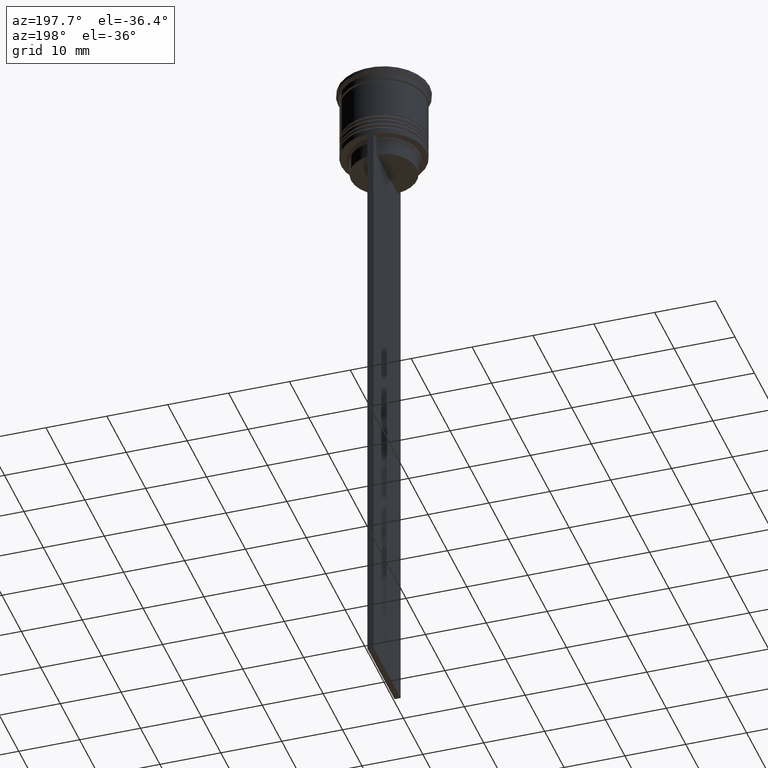
[diagram: clean part render]
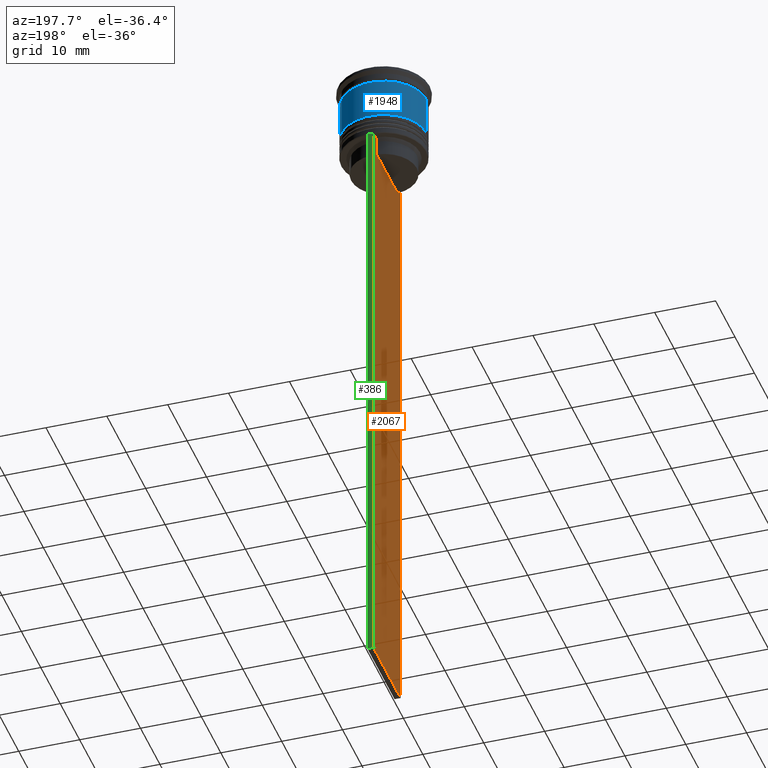
[diagram: same view with three faces highlighted in distinct colors, each labeled with its STEP entity id]
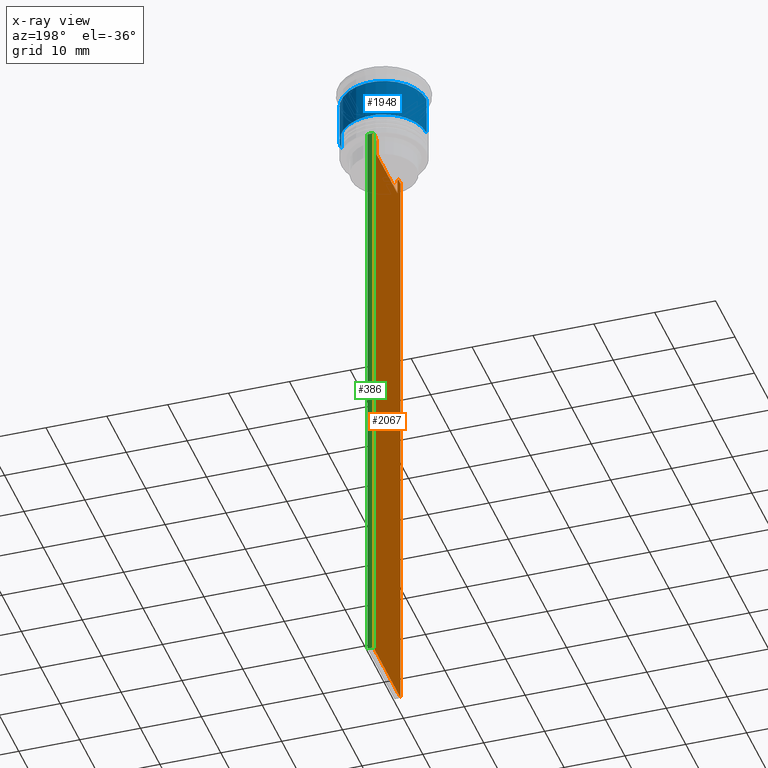
[diagram: x-ray of the same camera — body ghosted, the three highlighted faces saturated]
A machine part, auxiliary view with three faces highlighted in distinct colors.
The next image is the same camera in x-ray (body ghosted, the three faces saturated) — at least one of them is partly hidden behind the body in this view.
Their STEP definitions:

[orange] entity #2067 — the highlighted planar face has unit normal (-1, 0, 0).
#20 = DIRECTION ( 'NONE',  ( -1.000000000000000000, 0.000000000000000000, 0.000000000000000000 ) ) ;
#40 = EDGE_CURVE ( 'NONE', #947, #2364, #1402, .T. ) ;
#94 = CARTESIAN_POINT ( 'NONE',  ( -0.5000000000000000000, 6.881860213634102053, -12.50000000000000000 ) ) ;
#150 = LINE ( 'NONE', #533, #952 ) ;
#218 = CARTESIAN_POINT ( 'NONE',  ( -0.5000000000000000000, 5.376802023508029826, -15.50000000000000000 ) ) ;
#275 = DIRECTION ( 'NONE',  ( 0.000000000000000000, -1.000000000000000000, 0.000000000000000000 ) ) ;
#276 = EDGE_CURVE ( 'NONE', #2267, #1573, #528, .T. ) ;
#302 = CARTESIAN_POINT ( 'NONE',  ( -0.5000000000000000000, 5.400000000000003908, -15.50000000000000000 ) ) ;
#306 = VECTOR ( 'NONE', #1374, 1000.000000000000000 ) ;
#365 = ORIENTED_EDGE ( 'NONE', *, *, #1595, .F. ) ;
#409 = ORIENTED_EDGE ( 'NONE', *, *, #2205, .F. ) ;
#410 = ORIENTED_EDGE ( 'NONE', *, *, #2318, .F. ) ;
#418 = EDGE_CURVE ( 'NONE', #2364, #2436, #777, .T. ) ;
#440 = VERTEX_POINT ( 'NONE', #218 ) ;
#489 = ORIENTED_EDGE ( 'NONE', *, *, #2242, .F. ) ;
#500 = CARTESIAN_POINT ( 'NONE',  ( -0.5000000000000000000, -5.376802023508029826, -13.00000000000000178 ) ) ;
#521 = CARTESIAN_POINT ( 'NONE',  ( -0.5000000000000000000, -5.878775382679629402, -12.50000000000000000 ) ) ;
#522 = CARTESIAN_POINT ( 'NONE',  ( -0.5000000000000000000, -6.881860213634102053, -12.50000000000000000 ) ) ;
#528 = LINE ( 'NONE', #2070, #1961 ) ;
#533 = CARTESIAN_POINT ( 'NONE',  ( -0.5000000000000000000, -6.999999999999997335, -12.50000000000000000 ) ) ;
#581 = CARTESIAN_POINT ( 'NONE',  ( -0.5000000000000000000, -6.999999999999997335, 1.535668847618198329 ) ) ;
#605 = ORIENTED_EDGE ( 'NONE', *, *, #276, .F. ) ;
#656 = CARTESIAN_POINT ( 'NONE',  ( -0.5000000000000000000, -6.999999999999997335, -112.5000000000000000 ) ) ;
#699 = CARTESIAN_POINT ( 'NONE',  ( -0.5000000000000000000, -5.376802023508029826, -15.50000000000000000 ) ) ;
#777 = LINE ( 'NONE', #1565, #306 ) ;
#794 = DIRECTION ( 'NONE',  ( 0.000000000000000000, 0.000000000000000000, -1.000000000000000000 ) ) ;
#802 = CARTESIAN_POINT ( 'NONE',  ( -0.5000000000000000000, 7.000000000000002665, -12.50000000000000000 ) ) ;
#846 = VERTEX_POINT ( 'NONE', #802 ) ;
#875 = LINE ( 'NONE', #1646, #1175 ) ;
#881 = EDGE_CURVE ( 'NONE', #1310, #1246, #1831, .T. ) ;
#901 = VECTOR ( 'NONE', #982, 1000.000000000000000 ) ;
#916 = CARTESIAN_POINT ( 'NONE',  ( -0.5000000000000000000, -5.878775382679629402, -12.50000000000000000 ) ) ;
#917 = DIRECTION ( 'NONE',  ( 0.000000000000000000, -1.000000000000000000, 0.000000000000000000 ) ) ;
#939 = LINE ( 'NONE', #1358, #1170 ) ;
#947 = VERTEX_POINT ( 'NONE', #1444 ) ;
#952 = VECTOR ( 'NONE', #917, 1000.000000000000000 ) ;
#957 = CARTESIAN_POINT ( 'NONE',  ( -0.5000000000000000000, 5.711478846560141598, -12.66669470477064685 ) ) ;
#969 = CARTESIAN_POINT ( 'NONE',  ( -0.5000000000000000000, 5.878775382679629402, -12.50000000000000000 ) ) ;
#982 = DIRECTION ( 'NONE',  ( 0.000000000000000000, 0.000000000000000000, -1.000000000000000000 ) ) ;
#991 = ORIENTED_EDGE ( 'NONE', *, *, #1611, .T. ) ;
#992 = PLANE ( 'NONE',  #2325 ) ;
#998 = CARTESIAN_POINT ( 'NONE',  ( -0.5000000000000000000, -6.999999999999997335, 1.535668847618198329 ) ) ;
#1007 = ORIENTED_EDGE ( 'NONE', *, *, #1553, .F. ) ;
#1053 = VERTEX_POINT ( 'NONE', #2274 ) ;
#1065 = ORIENTED_EDGE ( 'NONE', *, *, #1360, .F. ) ;
#1104 = LINE ( 'NONE', #302, #1420 ) ;
#1170 = VECTOR ( 'NONE', #794, 1000.000000000000000 ) ;
#1171 = DIRECTION ( 'NONE',  ( 0.000000000000000000, 0.000000000000000000, 1.000000000000000000 ) ) ;
#1175 = VECTOR ( 'NONE', #1824, 1000.000000000000000 ) ;
#1177 = LINE ( 'NONE', #1353, #1648 ) ;
#1197 = CARTESIAN_POINT ( 'NONE',  ( -0.5000000000000000000, 5.878775382679629402, -12.50000000000000000 ) ) ;
#1213 = DIRECTION ( 'NONE',  ( 0.000000000000000000, 0.000000000000000000, -1.000000000000000000 ) ) ;
#1223 = LINE ( 'NONE', #2012, #1612 ) ;
#1228 = EDGE_LOOP ( 'NONE', ( #365, #1836, #1065, #991, #1637, #1781, #1007, #605, #409, #410, #489, #2249 ) ) ;
#1234 = EDGE_CURVE ( 'NONE', #1053, #440, #1177, .T. ) ;
#1246 = VERTEX_POINT ( 'NONE', #1197 ) ;
#1310 = VERTEX_POINT ( 'NONE', #94 ) ;
#1353 = CARTESIAN_POINT ( 'NONE',  ( -0.5000000000000000000, 5.376802023508029826, 0.000000000000000000 ) ) ;
#1358 = CARTESIAN_POINT ( 'NONE',  ( -0.5000000000000000000, 7.000000000000002665, 1.535668847618198329 ) ) ;
#1360 = EDGE_CURVE ( 'NONE', #846, #1310, #1223, .T. ) ;
#1372 = FACE_OUTER_BOUND ( 'NONE', #1228, .T. ) ;
#1374 = DIRECTION ( 'NONE',  ( 0.000000000000000000, 1.000000000000000000, 0.000000000000000000 ) ) ;
#1402 = LINE ( 'NONE', #998, #901 ) ;
#1420 = VECTOR ( 'NONE', #1509, 1000.000000000000000 ) ;
#1444 = CARTESIAN_POINT ( 'NONE',  ( -0.5000000000000000000, -6.999999999999997335, -12.50000000000000000 ) ) ;
#1493 = CARTESIAN_POINT ( 'NONE',  ( -0.5000000000000000000, -5.376802023508029826, -13.00000000000000178 ) ) ;
#1509 = DIRECTION ( 'NONE',  ( 0.000000000000000000, -1.000000000000000000, 0.000000000000000000 ) ) ;
#1553 = EDGE_CURVE ( 'NONE', #1573, #947, #150, .T. ) ;
#1565 = CARTESIAN_POINT ( 'NONE',  ( -0.5000000000000000000, -6.999999999999997335, -112.5000000000000000 ) ) ;
#1566 = CARTESIAN_POINT ( 'NONE',  ( -0.5000000000000000000, 5.544156989057553275, -12.83336397825725861 ) ) ;
#1573 = VERTEX_POINT ( 'NONE', #522 ) ;
#1595 = EDGE_CURVE ( 'NONE', #1246, #1053, #1609, .T. ) ;
#1609 = B_SPLINE_CURVE_WITH_KNOTS ( 'NONE', 3,
 ( #969, #957, #1566, #1744 ),
 .UNSPECIFIED., .F., .F.,
 ( 4, 4 ),
 ( 0.01003009312103698807, 0.01073859663834952557 ),
 .UNSPECIFIED. ) ;
#1611 = EDGE_CURVE ( 'NONE', #846, #2436, #939, .T. ) ;
#1612 = VECTOR ( 'NONE', #275, 1000.000000000000000 ) ;
#1637 = ORIENTED_EDGE ( 'NONE', *, *, #418, .F. ) ;
#1646 = CARTESIAN_POINT ( 'NONE',  ( -0.5000000000000000000, -5.376802023508029826, 0.000000000000000000 ) ) ;
#1648 = VECTOR ( 'NONE', #1213, 1000.000000000000000 ) ;
#1686 = VECTOR ( 'NONE', #2208, 1000.000000000000000 ) ;
#1744 = CARTESIAN_POINT ( 'NONE',  ( -0.5000000000000000000, 5.376802023508029826, -13.00000000000000178 ) ) ;
#1781 = ORIENTED_EDGE ( 'NONE', *, *, #40, .F. ) ;
#1824 = DIRECTION ( 'NONE',  ( -0.000000000000000000, -0.000000000000000000, 1.000000000000000000 ) ) ;
#1831 = LINE ( 'NONE', #1990, #1686 ) ;
#1836 = ORIENTED_EDGE ( 'NONE', *, *, #881, .F. ) ;
#1871 = B_SPLINE_CURVE_WITH_KNOTS ( 'NONE', 3,
 ( #1493, #2064, #2246, #521 ),
 .UNSPECIFIED., .F., .F.,
 ( 4, 4 ),
 ( 0.02539176325380714666, 0.02610162431828674801 ),
 .UNSPECIFIED. ) ;
#1872 = VERTEX_POINT ( 'NONE', #699 ) ;
#1961 = VECTOR ( 'NONE', #2433, 1000.000000000000000 ) ;
#1990 = CARTESIAN_POINT ( 'NONE',  ( -0.5000000000000000000, -6.999999999999997335, -12.50000000000000000 ) ) ;
#2012 = CARTESIAN_POINT ( 'NONE',  ( -0.5000000000000000000, -6.999999999999997335, -12.50000000000000000 ) ) ;
#2061 = CARTESIAN_POINT ( 'NONE',  ( -0.5000000000000000000, 7.000000000000002665, -112.5000000000000000 ) ) ;
#2064 = CARTESIAN_POINT ( 'NONE',  ( -0.5000000000000000000, -5.544156999454441959, -12.83336396790503642 ) ) ;
#2067 = ADVANCED_FACE ( 'NONE', ( #1372 ), #992, .T. ) ;
#2070 = CARTESIAN_POINT ( 'NONE',  ( -0.5000000000000000000, -6.999999999999997335, -12.50000000000000000 ) ) ;
#2205 = EDGE_CURVE ( 'NONE', #2476, #2267, #1871, .T. ) ;
#2208 = DIRECTION ( 'NONE',  ( 0.000000000000000000, -1.000000000000000000, 0.000000000000000000 ) ) ;
#2242 = EDGE_CURVE ( 'NONE', #440, #1872, #1104, .T. ) ;
#2246 = CARTESIAN_POINT ( 'NONE',  ( -0.5000000000000000000, -5.711478856069293286, -12.66669469529570335 ) ) ;
#2249 = ORIENTED_EDGE ( 'NONE', *, *, #1234, .F. ) ;
#2267 = VERTEX_POINT ( 'NONE', #916 ) ;
#2274 = CARTESIAN_POINT ( 'NONE',  ( -0.5000000000000000000, 5.376802023508029826, -13.00000000000000178 ) ) ;
#2318 = EDGE_CURVE ( 'NONE', #1872, #2476, #875, .T. ) ;
#2325 = AXIS2_PLACEMENT_3D ( 'NONE', #581, #20, #1171 ) ;
#2364 = VERTEX_POINT ( 'NONE', #656 ) ;
#2433 = DIRECTION ( 'NONE',  ( 0.000000000000000000, -1.000000000000000000, 0.000000000000000000 ) ) ;
#2436 = VERTEX_POINT ( 'NONE', #2061 ) ;
#2476 = VERTEX_POINT ( 'NONE', #500 ) ;

[blue] entity #1948 — the highlighted cylindrical surface (partial cylindrical patch) has radius 7 mm, axis along (-0, -0, 1).
#2 = VERTEX_POINT ( 'NONE', #2112 ) ;
#80 = EDGE_CURVE ( 'NONE', #1320, #566, #589, .T. ) ;
#117 = ORIENTED_EDGE ( 'NONE', *, *, #80, .T. ) ;
#146 = DIRECTION ( 'NONE',  ( -0.000000000000000000, -0.000000000000000000, 1.000000000000000000 ) ) ;
#278 = DIRECTION ( 'NONE',  ( 1.000000000000000000, 0.000000000000000000, 0.000000000000000000 ) ) ;
#317 = CARTESIAN_POINT ( 'NONE',  ( 0.000000000000000000, 0.000000000000000000, 0.000000000000000000 ) ) ;
#481 = DIRECTION ( 'NONE',  ( -0.000000000000000000, -0.000000000000000000, 1.000000000000000000 ) ) ;
#560 = CARTESIAN_POINT ( 'NONE',  ( 0.000000000000000000, 0.000000000000000000, -9.000000000000001776 ) ) ;
#566 = VERTEX_POINT ( 'NONE', #1995 ) ;
#589 = CIRCLE ( 'NONE', #1325, 7.000000000000000888 ) ;
#687 = CARTESIAN_POINT ( 'NONE',  ( 0.000000000000000000, 0.000000000000000000, -2.500000000000000444 ) ) ;
#702 = DIRECTION ( 'NONE',  ( -0.000000000000000000, -0.000000000000000000, 1.000000000000000000 ) ) ;
#745 = DIRECTION ( 'NONE',  ( 1.000000000000000000, 0.000000000000000000, 0.000000000000000000 ) ) ;
#756 = VECTOR ( 'NONE', #866, 1000.000000000000000 ) ;
#796 = VECTOR ( 'NONE', #702, 1000.000000000000000 ) ;
#866 = DIRECTION ( 'NONE',  ( -0.000000000000000000, -0.000000000000000000, 1.000000000000000000 ) ) ;
#914 = CIRCLE ( 'NONE', #1776, 6.999999999999997335 ) ;
#1023 = CARTESIAN_POINT ( 'NONE',  ( -6.999999999999999112, 8.572527594031472204E-16, 0.000000000000000000 ) ) ;
#1069 = DIRECTION ( 'NONE',  ( 1.000000000000000000, 0.000000000000000000, 0.000000000000000000 ) ) ;
#1089 = DIRECTION ( 'NONE',  ( -0.000000000000000000, -0.000000000000000000, 1.000000000000000000 ) ) ;
#1120 = CARTESIAN_POINT ( 'NONE',  ( 6.999999999999999112, 0.000000000000000000, 0.000000000000000000 ) ) ;
#1252 = AXIS2_PLACEMENT_3D ( 'NONE', #317, #1089, #745 ) ;
#1319 = EDGE_CURVE ( 'NONE', #566, #2148, #2390, .T. ) ;
#1320 = VERTEX_POINT ( 'NONE', #1421 ) ;
#1325 = AXIS2_PLACEMENT_3D ( 'NONE', #560, #146, #278 ) ;
#1421 = CARTESIAN_POINT ( 'NONE',  ( 7.000000000000000888, 0.000000000000000000, -9.000000000000001776 ) ) ;
#1522 = EDGE_CURVE ( 'NONE', #1320, #2, #2417, .T. ) ;
#1590 = CARTESIAN_POINT ( 'NONE',  ( -6.999999999999997335, 8.572527594031471218E-16, -2.500000000000000444 ) ) ;
#1628 = ORIENTED_EDGE ( 'NONE', *, *, #2389, .F. ) ;
#1716 = ORIENTED_EDGE ( 'NONE', *, *, #1522, .F. ) ;
#1776 = AXIS2_PLACEMENT_3D ( 'NONE', #687, #481, #1069 ) ;
#1948 = ADVANCED_FACE ( 'NONE', ( #2453 ), #2258, .T. ) ;
#1966 = EDGE_LOOP ( 'NONE', ( #117, #2375, #1628, #1716 ) ) ;
#1995 = CARTESIAN_POINT ( 'NONE',  ( -7.000000000000000888, 8.572527594031474176E-16, -9.000000000000001776 ) ) ;
#2112 = CARTESIAN_POINT ( 'NONE',  ( 6.999999999999997335, 0.000000000000000000, -2.500000000000000444 ) ) ;
#2148 = VERTEX_POINT ( 'NONE', #1590 ) ;
#2258 = CYLINDRICAL_SURFACE ( 'NONE', #1252, 6.999999999999999112 ) ;
#2375 = ORIENTED_EDGE ( 'NONE', *, *, #1319, .T. ) ;
#2389 = EDGE_CURVE ( 'NONE', #2, #2148, #914, .T. ) ;
#2390 = LINE ( 'NONE', #1023, #756 ) ;
#2417 = LINE ( 'NONE', #1120, #796 ) ;
#2453 = FACE_OUTER_BOUND ( 'NONE', #1966, .T. ) ;

[green] entity #386 — the highlighted planar face has unit normal (0, -1, -0).
#266 = EDGE_LOOP ( 'NONE', ( #2387, #2470, #1109, #591 ) ) ;
#354 = VECTOR ( 'NONE', #1523, 1000.000000000000000 ) ;
#386 = ADVANCED_FACE ( 'NONE', ( #2493 ), #583, .F. ) ;
#390 = DIRECTION ( 'NONE',  ( 0.000000000000000000, -1.000000000000000000, -0.000000000000000000 ) ) ;
#399 = VERTEX_POINT ( 'NONE', #1173 ) ;
#583 = PLANE ( 'NONE',  #1607 ) ;
#591 = ORIENTED_EDGE ( 'NONE', *, *, #1835, .T. ) ;
#761 = DIRECTION ( 'NONE',  ( 0.000000000000000000, 0.000000000000000000, -1.000000000000000000 ) ) ;
#794 = DIRECTION ( 'NONE',  ( 0.000000000000000000, 0.000000000000000000, -1.000000000000000000 ) ) ;
#802 = CARTESIAN_POINT ( 'NONE',  ( -0.5000000000000000000, 7.000000000000002665, -12.50000000000000000 ) ) ;
#846 = VERTEX_POINT ( 'NONE', #802 ) ;
#939 = LINE ( 'NONE', #1358, #1170 ) ;
#1022 = CARTESIAN_POINT ( 'NONE',  ( 0.5000000000000000000, 7.000000000000002665, -112.5000000000000000 ) ) ;
#1055 = EDGE_CURVE ( 'NONE', #846, #1527, #2092, .T. ) ;
#1109 = ORIENTED_EDGE ( 'NONE', *, *, #1768, .T. ) ;
#1170 = VECTOR ( 'NONE', #794, 1000.000000000000000 ) ;
#1173 = CARTESIAN_POINT ( 'NONE',  ( 0.5000000000000000000, 7.000000000000002665, -112.5000000000000000 ) ) ;
#1210 = CARTESIAN_POINT ( 'NONE',  ( 0.5000000000000000000, 7.000000000000002665, 1.535668847618198329 ) ) ;
#1232 = LINE ( 'NONE', #1210, #1767 ) ;
#1358 = CARTESIAN_POINT ( 'NONE',  ( -0.5000000000000000000, 7.000000000000002665, 1.535668847618198329 ) ) ;
#1418 = DIRECTION ( 'NONE',  ( 0.000000000000000000, 0.000000000000000000, -1.000000000000000000 ) ) ;
#1419 = VECTOR ( 'NONE', #2007, 1000.000000000000000 ) ;
#1523 = DIRECTION ( 'NONE',  ( 1.000000000000000000, 0.000000000000000000, 0.000000000000000000 ) ) ;
#1527 = VERTEX_POINT ( 'NONE', #2263 ) ;
#1607 = AXIS2_PLACEMENT_3D ( 'NONE', #2305, #390, #761 ) ;
#1611 = EDGE_CURVE ( 'NONE', #846, #2436, #939, .T. ) ;
#1767 = VECTOR ( 'NONE', #1418, 1000.000000000000000 ) ;
#1768 = EDGE_CURVE ( 'NONE', #1527, #399, #1232, .T. ) ;
#1835 = EDGE_CURVE ( 'NONE', #399, #2436, #2020, .T. ) ;
#1906 = CARTESIAN_POINT ( 'NONE',  ( 0.5000000000000000000, 7.000000000000002665, -12.50000000000000000 ) ) ;
#2007 = DIRECTION ( 'NONE',  ( -1.000000000000000000, 0.000000000000000000, 0.000000000000000000 ) ) ;
#2020 = LINE ( 'NONE', #1022, #1419 ) ;
#2061 = CARTESIAN_POINT ( 'NONE',  ( -0.5000000000000000000, 7.000000000000002665, -112.5000000000000000 ) ) ;
#2092 = LINE ( 'NONE', #1906, #354 ) ;
#2263 = CARTESIAN_POINT ( 'NONE',  ( 0.5000000000000000000, 7.000000000000002665, -12.50000000000000000 ) ) ;
#2305 = CARTESIAN_POINT ( 'NONE',  ( 0.5000000000000000000, 7.000000000000002665, 1.535668847618198329 ) ) ;
#2387 = ORIENTED_EDGE ( 'NONE', *, *, #1611, .F. ) ;
#2436 = VERTEX_POINT ( 'NONE', #2061 ) ;
#2470 = ORIENTED_EDGE ( 'NONE', *, *, #1055, .T. ) ;
#2493 = FACE_OUTER_BOUND ( 'NONE', #266, .T. ) ;